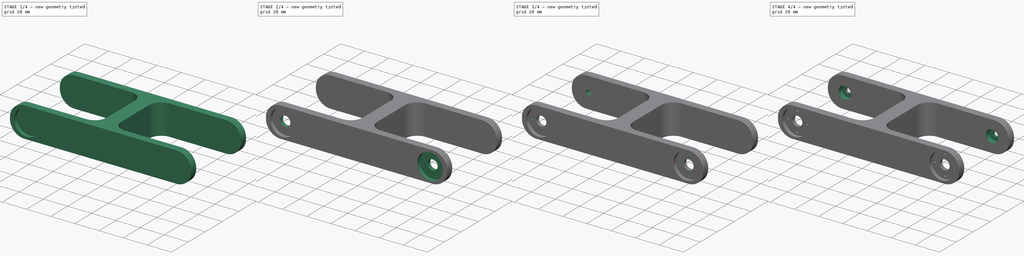
[diagram: build sequence overview — one tinted view per stage of 4, left to right]
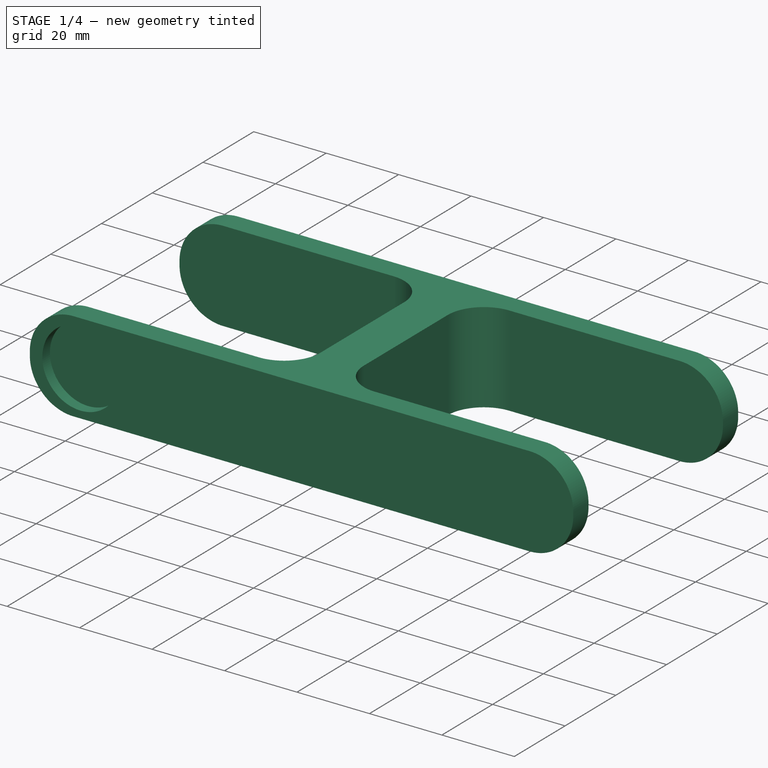
[diagram: stage 1 of 4 — iso view after this stage's code; geometry added in this stage tinted green]
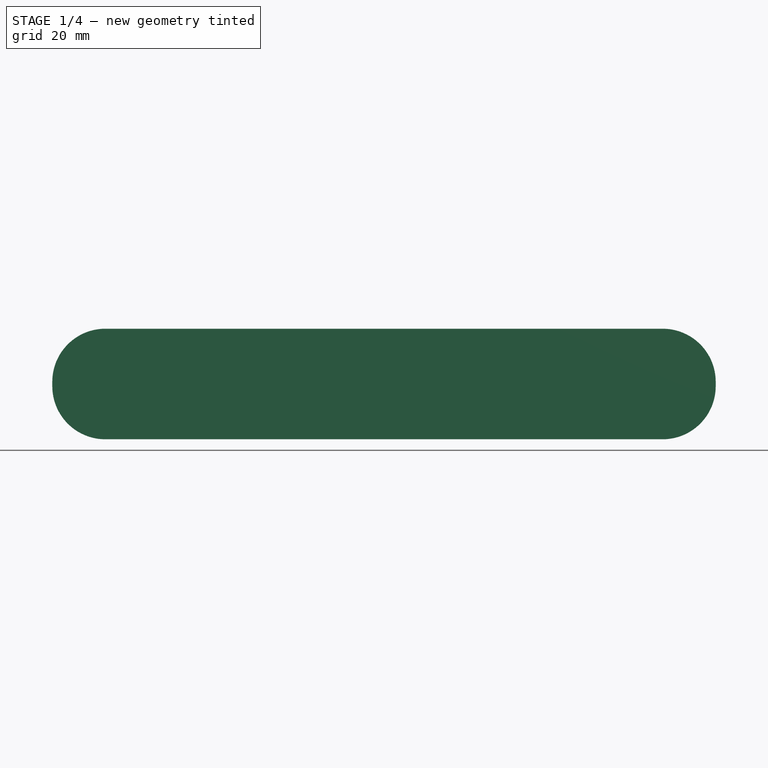
[diagram: stage 1 of 4 — front view after this stage's code; geometry added in this stage tinted green]
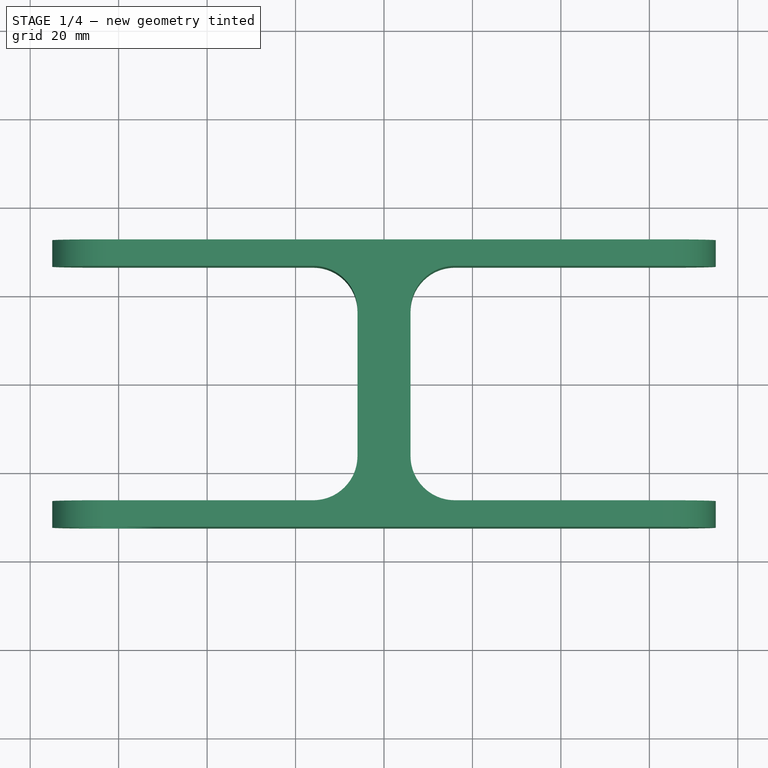
[diagram: stage 1 of 4 — top view after this stage's code; geometry added in this stage tinted green]
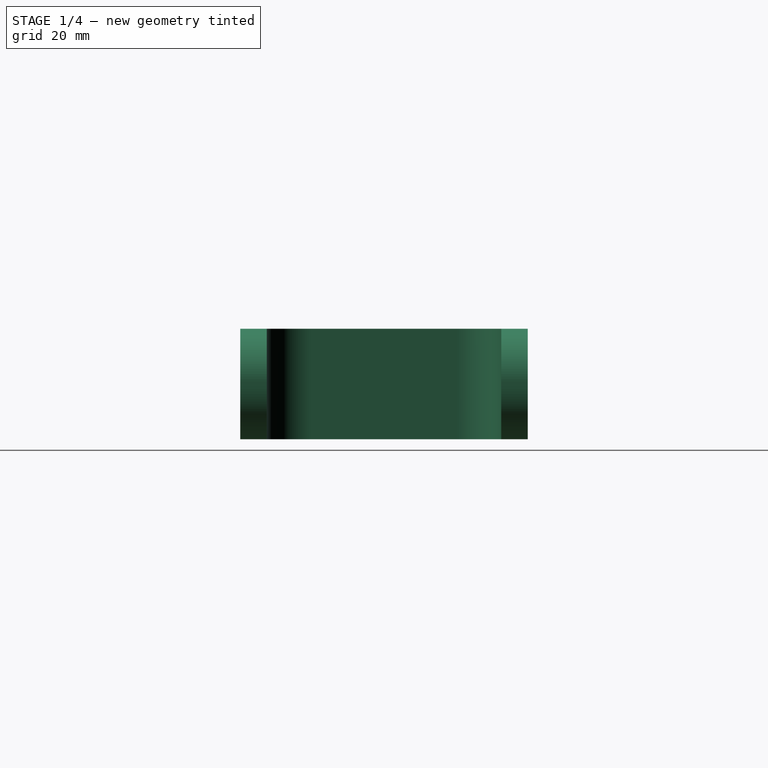
[diagram: stage 1 of 4 — right view after this stage's code; geometry added in this stage tinted green]
FCSTD DOCUMENT  (FreeCAD 0.17R13519 (Git))
Label: pieza2V6
License: CreativeCommons Attribution-ShareAlike
LicenseURL: http://creativecommons.org/licenses/by-sa/4.0/
objects: Sketcher::SketchObject×6, PartDesign::Plane×5, PartDesign::Pocket×5, PartDesign::Mirrored×5, PartDesign::Pad×1, PartDesign::Fillet×1, PartDesign::Body×1, Part::Feature×1
note: 31 computed .brp shape members not serialized (recipe doc carries the construction recipe); baked Part::Feature solids carry a one-line shape summary decoded from their .brp

FEATURE [Sketcher::SketchObject] Sketch
  MapMode = 5
  Support = -> [XY_Plane]
  sketch-geometry (18):
    g0: LineSegment StartX=-75 StartY=32.5 StartZ=0 EndX=-75 EndY=26.5 EndZ=0
    g1: LineSegment StartX=-75 StartY=26.5 StartZ=0 EndX=-16 EndY=26.5 EndZ=0
    g2: LineSegment StartX=-6 StartY=16.5 StartZ=0 EndX=-6 EndY=-16.5 EndZ=0
    g3: LineSegment StartX=-16 StartY=-26.5 StartZ=0 EndX=-75 EndY=-26.5 EndZ=0
    g4: LineSegment StartX=-75 StartY=-26.5 StartZ=0 EndX=-75 EndY=-32.5 EndZ=0
    g5: LineSegment StartX=-75 StartY=-32.5 StartZ=0 EndX=0 EndY=-32.5 EndZ=0
    g6: LineSegment StartX=0 StartY=32.5 StartZ=0 EndX=-75 EndY=32.5 EndZ=0
    g7: ArcOfCircle CenterX=-16 CenterY=16.5 CenterZ=0 NormalX=0 NormalY=0 NormalZ=1 AngleXU=0 Radius=10 StartAngle=0 EndAngle=1.5708
    g8: ArcOfCircle CenterX=-16 CenterY=-16.5 CenterZ=0 NormalX=0 NormalY=0 NormalZ=1 AngleXU=0 Radius=10 StartAngle=4.71239 EndAngle=6.28319
    g9: LineSegment StartX=75 StartY=32.5 StartZ=0 EndX=75 EndY=26.5 EndZ=0
    g10: LineSegment StartX=75 StartY=26.5 StartZ=0 EndX=16 EndY=26.5 EndZ=0
    g11: LineSegment StartX=6 StartY=16.5 StartZ=0 EndX=6 EndY=-16.5 EndZ=0
    g12: LineSegment StartX=16 StartY=-26.5 StartZ=0 EndX=75 EndY=-26.5 EndZ=0
    g13: LineSegment StartX=75 StartY=-26.5 StartZ=0 EndX=75 EndY=-32.5 EndZ=0
    g14: LineSegment StartX=75 StartY=-32.5 StartZ=0 EndX=0 EndY=-32.5 EndZ=0
    g15: LineSegment StartX=0 StartY=32.5 StartZ=0 EndX=75 EndY=32.5 EndZ=0
    g16: ArcOfCircle CenterX=16 CenterY=16.5 CenterZ=0 NormalX=0 NormalY=0 NormalZ=1 AngleXU=0 Radius=10 StartAngle=1.5708 EndAngle=3.14159
    g17: ArcOfCircle CenterX=16 CenterY=-16.5 CenterZ=0 NormalX=0 NormalY=0 NormalZ=1 AngleXU=0 Radius=10 StartAngle=3.14159 EndAngle=4.71239
  constraints (44):
    c: Vertical(g0)
    c: Coincident(g0,g1)
    c: Horizontal(g1)
    c: Vertical(g2)
    c: Horizontal(g3)
    c: Coincident(g3,g4)
    c: Vertical(g4)
    c: Coincident(g4,g5)
    c: PointOnObject(g5,g-2)
    c: Horizontal(g5)
    c: Coincident(g6,g0)
    c: Horizontal(g6)
    c: DistanceX(g6,g6) = 75
    c: Equal(g6,g5)
    c: Equal(g0,g4)
    c: DistanceY(g4,g4) = 6
    c: DistanceY(g5,g6) = 65
    c: Tangent(g1,g7) = 1.5708
    c: Tangent(g2,g7) = 1.5708
    c: Tangent(g2,g8) = 1.5708
    c: Tangent(g3,g8) = 1.5708
    c: Equal(g8,g7)
    c: Radius(g7) = 10
    c: Symmetric(g5,g6,g-1)
    c: DistanceX(g2,g5) = 6
    c: Vertical(g9)
    c: Coincident(g9,g10)
    c: Horizontal(g10)
    c: Vertical(g11)
    c: Horizontal(g12)
    c: Coincident(g12,g13)
    c: Vertical(g13)
    c: Coincident(g13,g14)
    c: Horizontal(g14)
    c: Coincident(g15,g9)
    c: Horizontal(g15)
    c: Equal(g15,g14)
    c: Equal(g9,g13)
    c: Tangent(g10,g16) = -1.5708
    c: Tangent(g11,g16) = -1.5708
    c: Tangent(g11,g17) = -1.5708
    c: Tangent(g12,g17) = -1.5708
    c: Equal(g17,g16)
    c: Radius(g16) = 10
FEATURE [PartDesign::Pad] Pad
  Length = 25
  Length2 = 100
  Profile = -> Sketch
  Type = 0
FEATURE [PartDesign::Fillet] Fillet
  Base = -> Pad [Edge7,Edge25,Edge34,Edge52,Edge51,Edge33,Edge6,Edge24]
  BaseFeature = -> Pad
  Radius = 12
FEATURE [PartDesign::Plane] DatumPlane
  MapMode = 5
  Placement = pos=(0,-32.5,0) rot=(1,0,0;1.5708rad)
  Support = -> [Fillet]
FEATURE [Sketcher::SketchObject] Sketch001
  MapMode = 5
  Placement = pos=(0,-32.5,0) rot=(1,0,0;1.5708rad)
  Support = -> [DatumPlane]
  sketch-geometry (2):
    g0: LineSegment [constr] StartX=-89.6906 StartY=12.5 StartZ=0 EndX=25.4828 EndY=12.5 EndZ=0
    g1: Circle CenterX=-61 CenterY=12.5 CenterZ=0 NormalX=0 NormalY=0 NormalZ=1 AngleXU=0 Radius=10.55
  constraints (5):
    c: Horizontal(g0)
    c: DistanceY(g-1,g0) = 12.5
    c: PointOnObject(g1,g0)
    c: Radius(g1) = 10.55
    c: DistanceX(g1,g-1) = 61
FEATURE [PartDesign::Pocket] Pocket
  BaseFeature = -> Fillet
  Length = 3
  Length2 = 100
  Profile = -> Sketch001
  Type = 0
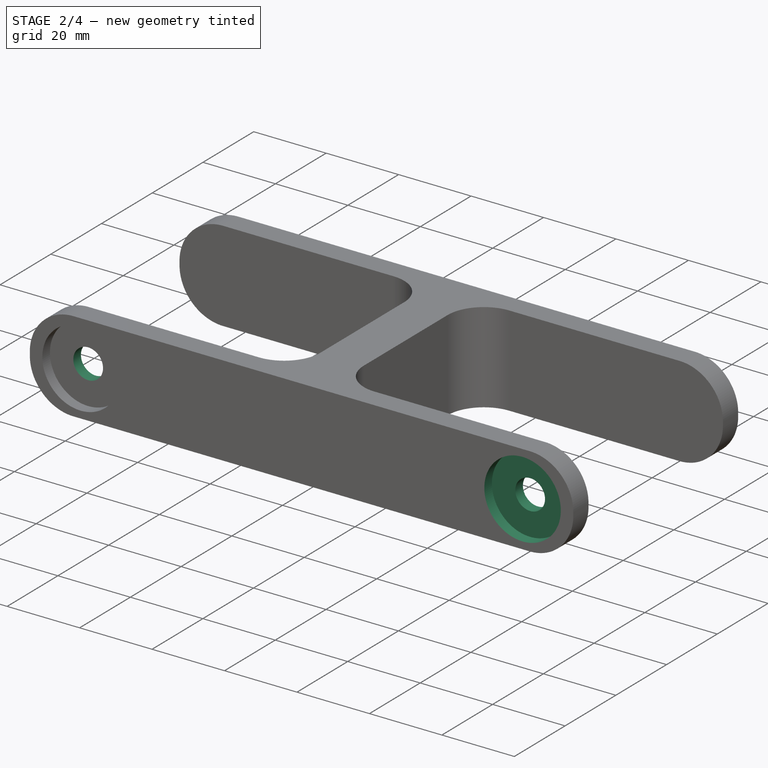
[diagram: stage 2 of 4 — iso view after this stage's code; geometry added in this stage tinted green]
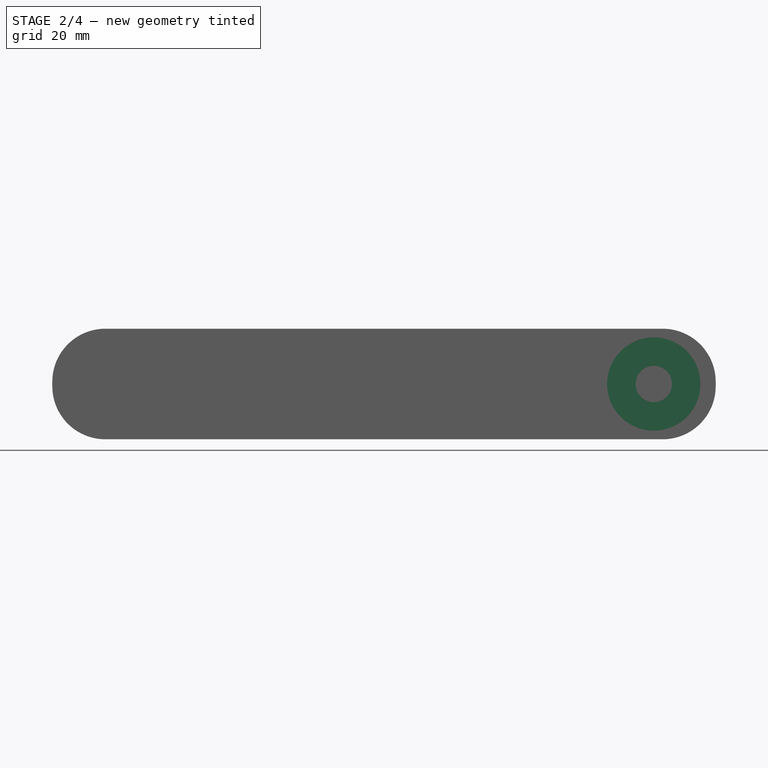
[diagram: stage 2 of 4 — front view after this stage's code; geometry added in this stage tinted green]
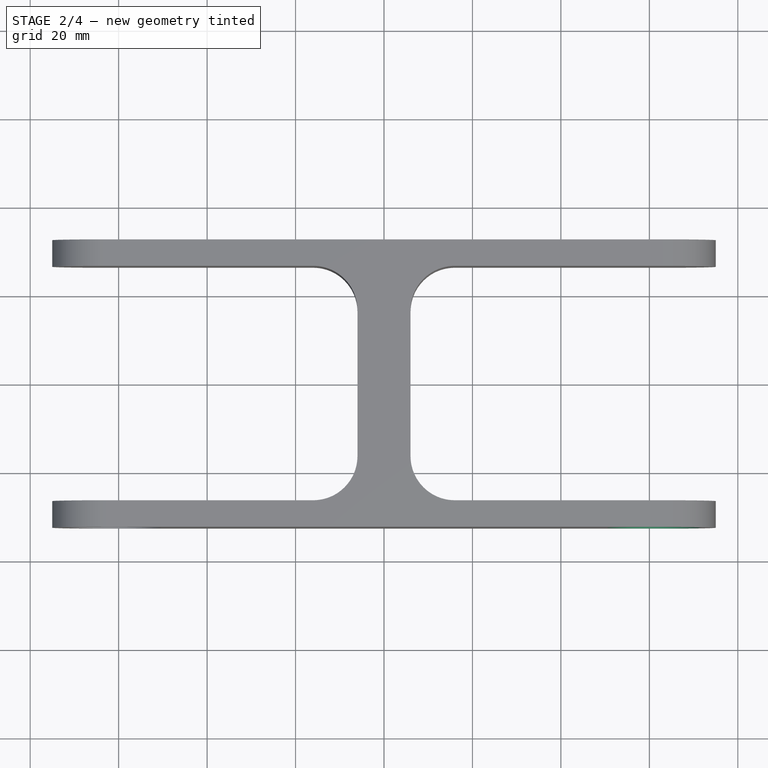
[diagram: stage 2 of 4 — top view after this stage's code; geometry added in this stage tinted green]
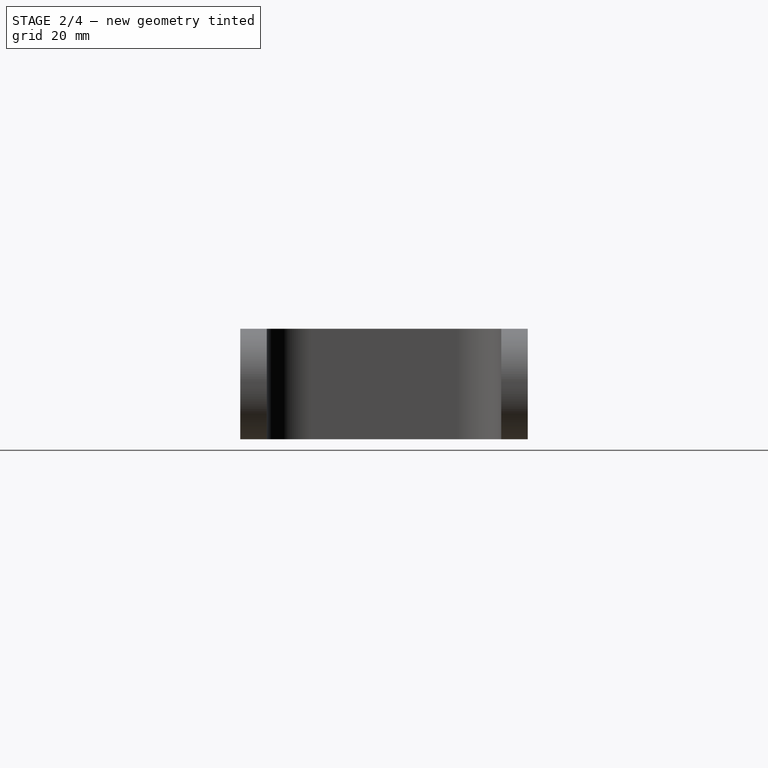
[diagram: stage 2 of 4 — right view after this stage's code; geometry added in this stage tinted green]
FEATURE [PartDesign::Mirrored] Mirrored
  BaseFeature = -> Pocket
  MirrorPlane = -> Sketch001 [V_Axis]
  Originals = -> [Pocket]
FEATURE [PartDesign::Plane] DatumPlane001
  MapMode = 5
  Placement = pos=(0,-29.5,0) rot=(1,0,0;1.5708rad)
  Support = -> [Mirrored]
FEATURE [Sketcher::SketchObject] Sketch002
  ExternalGeometry = -> [Pocket]
  MapMode = 5
  Placement = pos=(0,-29.5,0) rot=(1,0,0;1.5708rad)
  Support = -> [DatumPlane001]
  sketch-geometry (1):
    g0: Circle CenterX=-61 CenterY=12.5 CenterZ=0 NormalX=0 NormalY=0 NormalZ=1 AngleXU=0 Radius=4.1
  constraints (2):
    c: Coincident(g0,g-3)
    c: Radius(g0) = 4.1
FEATURE [PartDesign::Pocket] Pocket001
  BaseFeature = -> Mirrored
  Length = 5
  Length2 = 100
  Profile = -> Sketch002
  Type = 0
FEATURE [PartDesign::Mirrored] Mirrored001
  BaseFeature = -> Pocket001
  MirrorPlane = -> Sketch002 [V_Axis]
  Originals = -> [Pocket001]
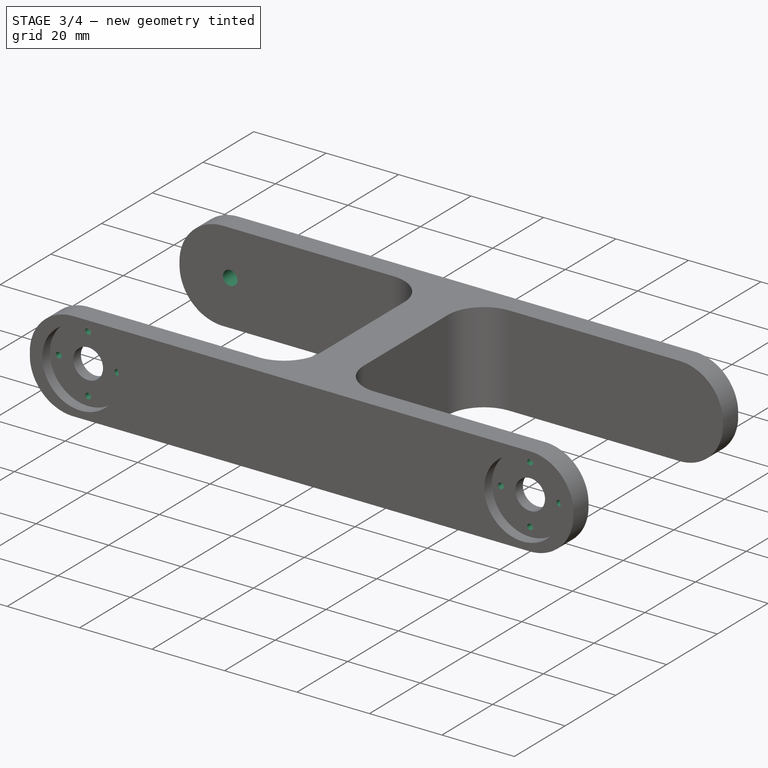
[diagram: stage 3 of 4 — iso view after this stage's code; geometry added in this stage tinted green]
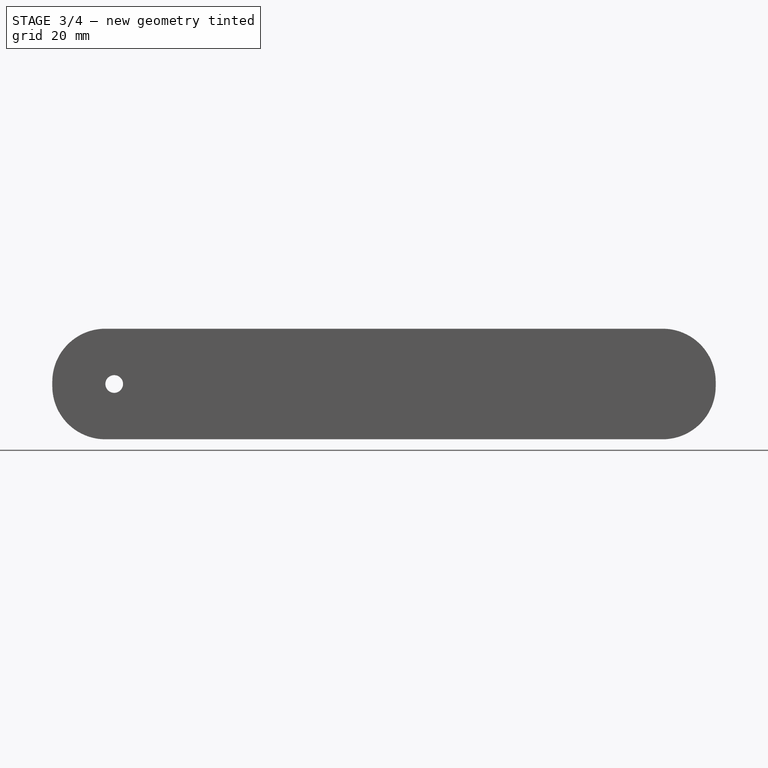
[diagram: stage 3 of 4 — front view after this stage's code; geometry added in this stage tinted green]
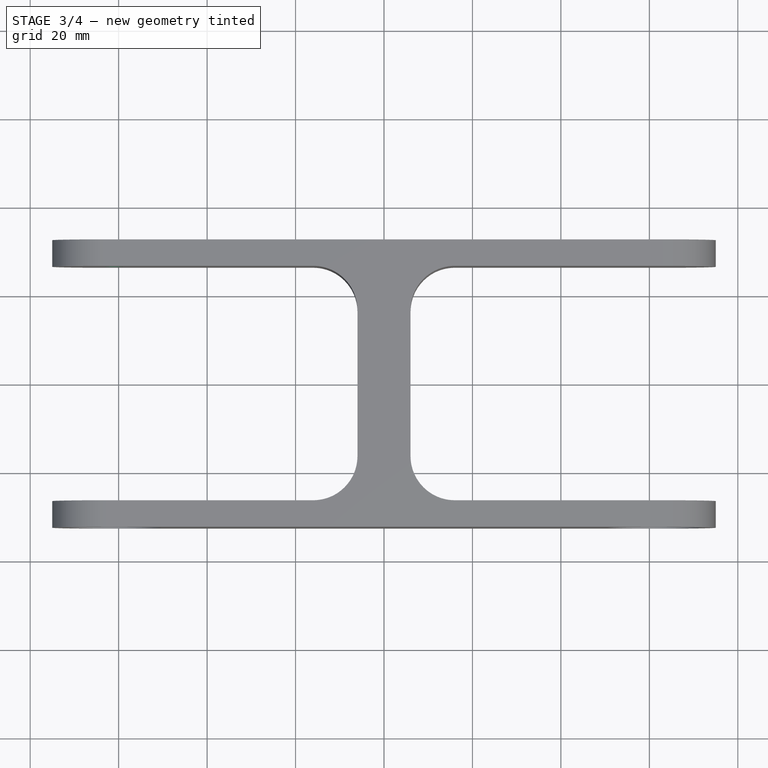
[diagram: stage 3 of 4 — top view after this stage's code; geometry added in this stage tinted green]
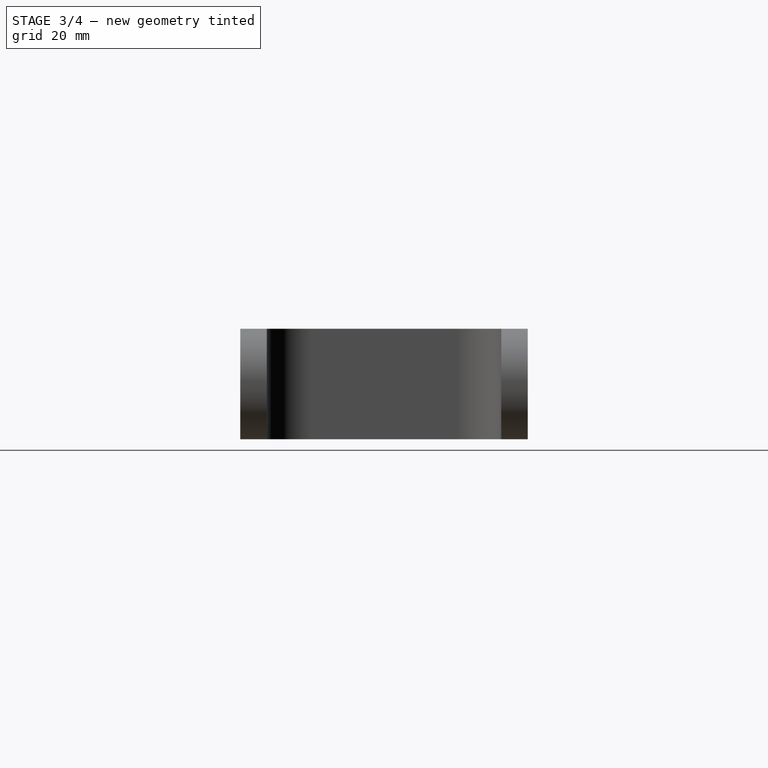
[diagram: stage 3 of 4 — right view after this stage's code; geometry added in this stage tinted green]
FEATURE [PartDesign::Plane] DatumPlane002
  MapMode = 5
  Placement = pos=(0,-29.5,0) rot=(1,0,0;1.5708rad)
  Support = -> [Mirrored001]
FEATURE [Sketcher::SketchObject] Sketch003
  ExternalGeometry = -> [Pocket001]
  MapMode = 5
  Placement = pos=(0,-29.5,0) rot=(1,0,0;1.5708rad)
  Support = -> [DatumPlane002]
  sketch-geometry (6):
    g0: LineSegment [constr] StartX=-61 StartY=23.8845 StartZ=0 EndX=-61 EndY=-3.54192 EndZ=0
    g1: LineSegment [constr] StartX=-76.3948 StartY=12.5 StartZ=0 EndX=-47.5921 EndY=12.5 EndZ=0
    g2: Circle CenterX=-61 CenterY=20.57 CenterZ=0 NormalX=0 NormalY=0 NormalZ=1 AngleXU=0 Radius=0.8
    g3: Circle CenterX=-52.93 CenterY=12.5 CenterZ=0 NormalX=0 NormalY=0 NormalZ=1 AngleXU=0 Radius=0.8
    g4: Circle CenterX=-61 CenterY=4.43 CenterZ=0 NormalX=0 NormalY=0 NormalZ=1 AngleXU=0 Radius=0.8
    g5: Circle CenterX=-69.07 CenterY=12.5 CenterZ=0 NormalX=0 NormalY=0 NormalZ=1 AngleXU=0 Radius=0.8
  constraints (13):
    c: Vertical(g0)
    c: Horizontal(g1)
    c: PointOnObject(g4,g0)
    c: Equal(g2,g3)
    c: Equal(g3,g4)
    c: Equal(g4,g5)
    c: PointOnObject(g3,g1)
    c: PointOnObject(g5,g1)
    c: DistanceY(g4,g2) = 16.14
    c: Symmetric(g2,g4,g1)
    c: Symmetric(g5,g3,g0)
    c: Radius(g2) = 0.8
    c: DistanceX(g5,g3) = 16.14
FEATURE [PartDesign::Pocket] Pocket002
  BaseFeature = -> Mirrored001
  Length = 5
  Length2 = 100
  Profile = -> Sketch003
  Type = 0
FEATURE [PartDesign::Mirrored] Mirrored002
  BaseFeature = -> Pocket002
  MirrorPlane = -> Sketch003 [V_Axis]
  Originals = -> [Pocket002]
FEATURE [PartDesign::Plane] DatumPlane003
  MapMode = 5
  Placement = pos=(0,-29.5,0) rot=(1,0,0;1.5708rad)
  Support = -> [Mirrored002]
FEATURE [Sketcher::SketchObject] Sketch004
  ExternalGeometry = -> [Pocket002]
  MapMode = 5
  Placement = pos=(0,-29.5,0) rot=(1,0,0;1.5708rad)
  Support = -> [DatumPlane003]
  sketch-geometry (1):
    g0: Circle CenterX=-61 CenterY=12.5 CenterZ=0 NormalX=0 NormalY=0 NormalZ=1 AngleXU=0 Radius=2
  constraints (2):
    c: Coincident(g0,g-3)
    c: Radius(g0) = 2
FEATURE [PartDesign::Pocket] Pocket003
  BaseFeature = -> Mirrored002
  Length = 5
  Length2 = 100
  Profile = -> Sketch004
  Type = 1
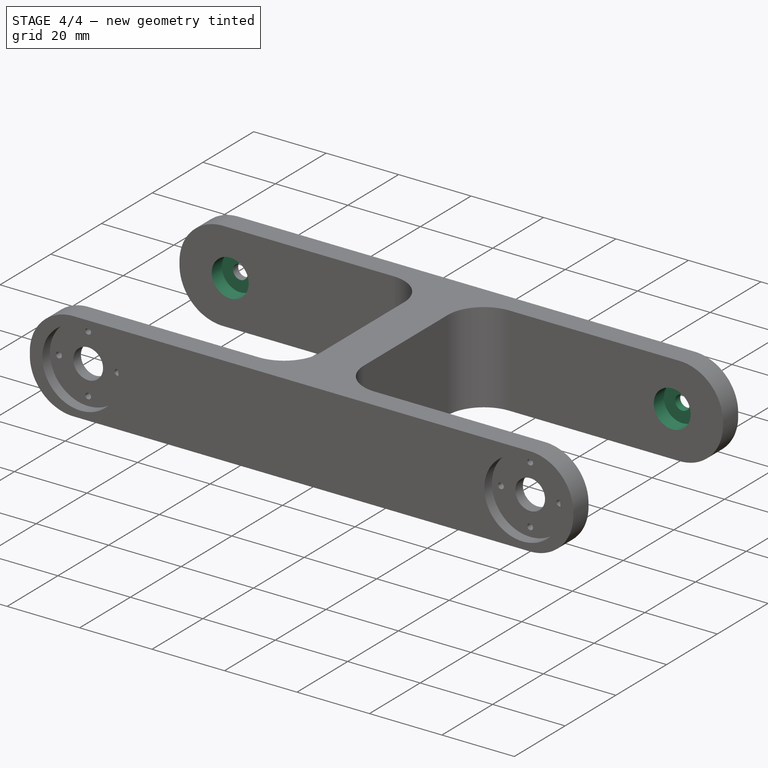
[diagram: stage 4 of 4 — iso view after this stage's code; geometry added in this stage tinted green]
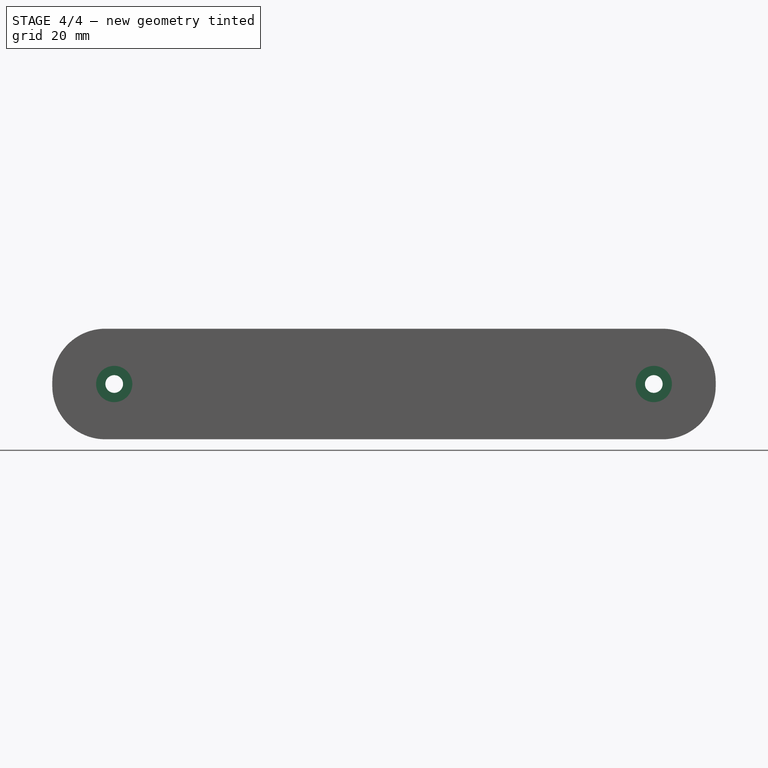
[diagram: stage 4 of 4 — front view after this stage's code; geometry added in this stage tinted green]
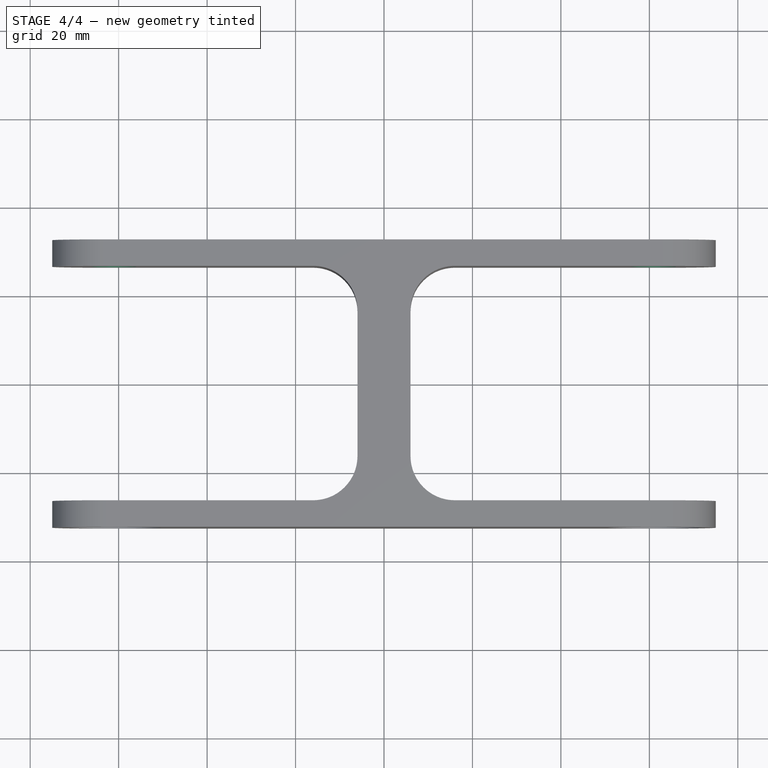
[diagram: stage 4 of 4 — top view after this stage's code; geometry added in this stage tinted green]
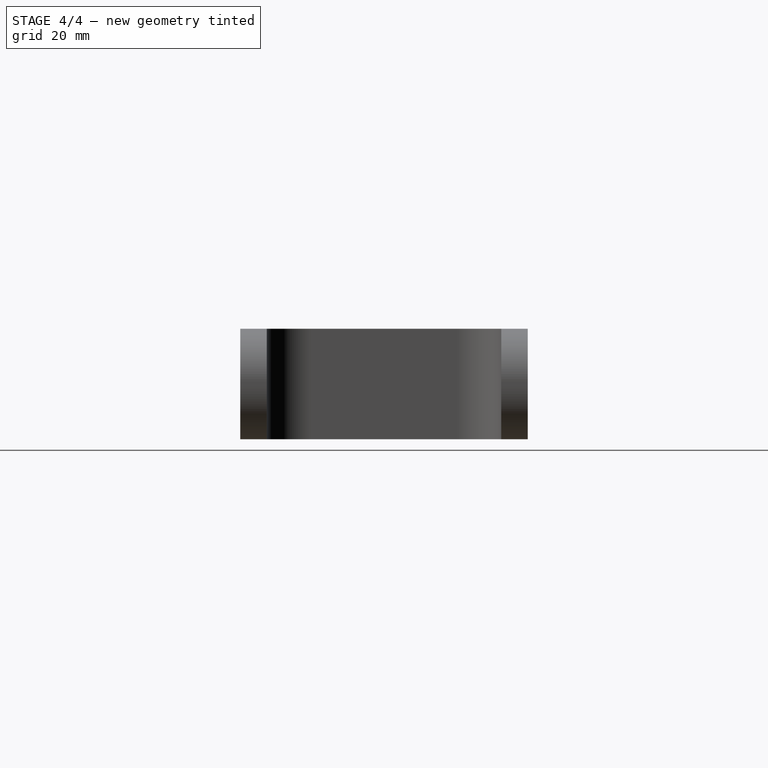
[diagram: stage 4 of 4 — right view after this stage's code; geometry added in this stage tinted green]
FEATURE [PartDesign::Mirrored] Mirrored003
  BaseFeature = -> Pocket003
  MirrorPlane = -> Sketch004 [V_Axis]
  Originals = -> [Pocket003]
FEATURE [PartDesign::Plane] DatumPlane004
  MapMode = 5
  Placement = pos=(0,26.5,0) rot=(1,0,0;1.5708rad)
  Support = -> [Mirrored003]
FEATURE [Sketcher::SketchObject] Sketch005
  ExternalGeometry = -> [Pocket003]
  MapMode = 5
  Placement = pos=(0,26.5,0) rot=(1,0,0;1.5708rad)
  Support = -> [DatumPlane004]
  sketch-geometry (1):
    g0: Circle CenterX=-61 CenterY=12.5 CenterZ=0 NormalX=0 NormalY=0 NormalZ=1 AngleXU=0 Radius=5.1
  constraints (2):
    c: Coincident(g0,g-3)
    c: Radius(g0) = 5.1
FEATURE [PartDesign::Pocket] Pocket004
  BaseFeature = -> Mirrored003
  Length = 4
  Length2 = 100
  Profile = -> Sketch005
  Type = 0
FEATURE [PartDesign::Mirrored] Mirrored004
  BaseFeature = -> Pocket004
  MirrorPlane = -> Sketch005 [V_Axis]
  Originals = -> [Pocket004]
FEATURE [PartDesign::Body] Body
  Group = -> [Sketch,Pad,Fillet,DatumPlane,Sketch001,Pocket,Mirrored,DatumPlane001,Sketch002,Pocket001,Mirrored001,DatumPlane002,Sketch003,Pocket002,Mirrored002,DatumPlane003,Sketch004,Pocket003,Mirrored003,DatumPlane004,Sketch005,Pocket004,Mirrored004]
  Origin = -> Origin
  Tip = -> Mirrored004
FEATURE [Part::Feature] Mirrored004001  label="Mirrored005"
  shape: bbox 150 x 65 x 25 mm, 48 faces (baked)
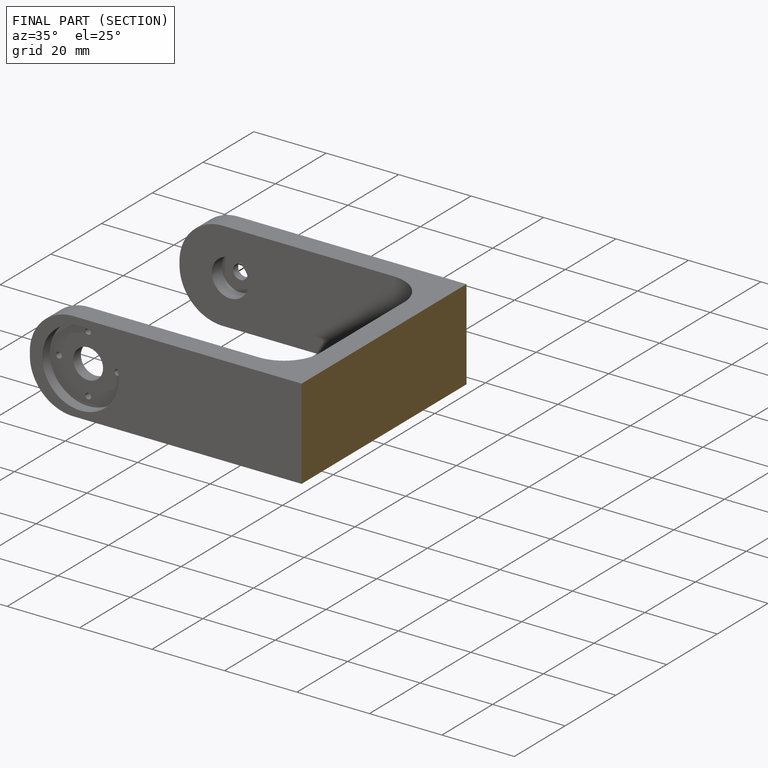
[diagram: finished part — half-section view (interior)]
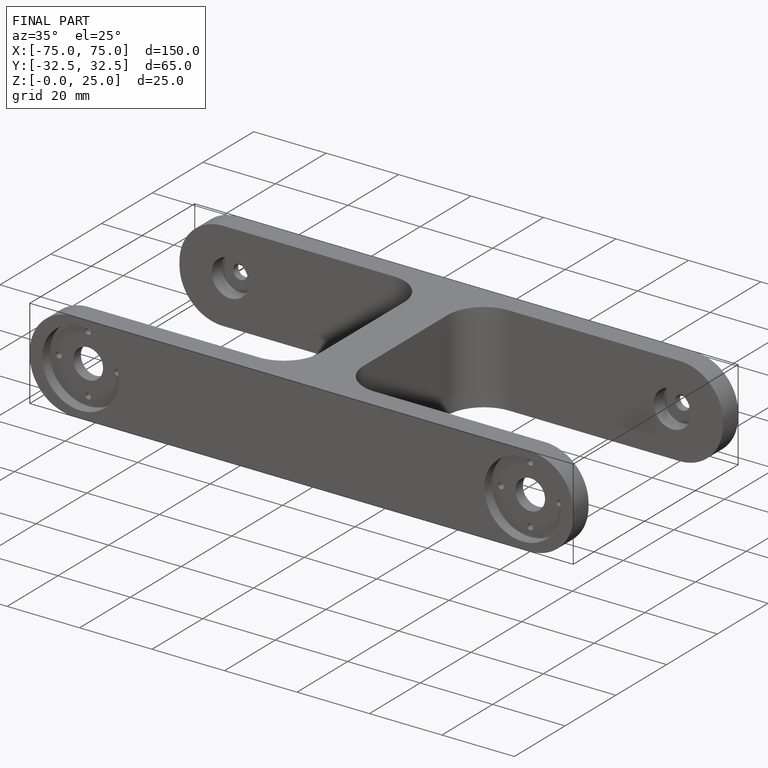
[diagram: finished part — iso view with bounding-box wireframe]
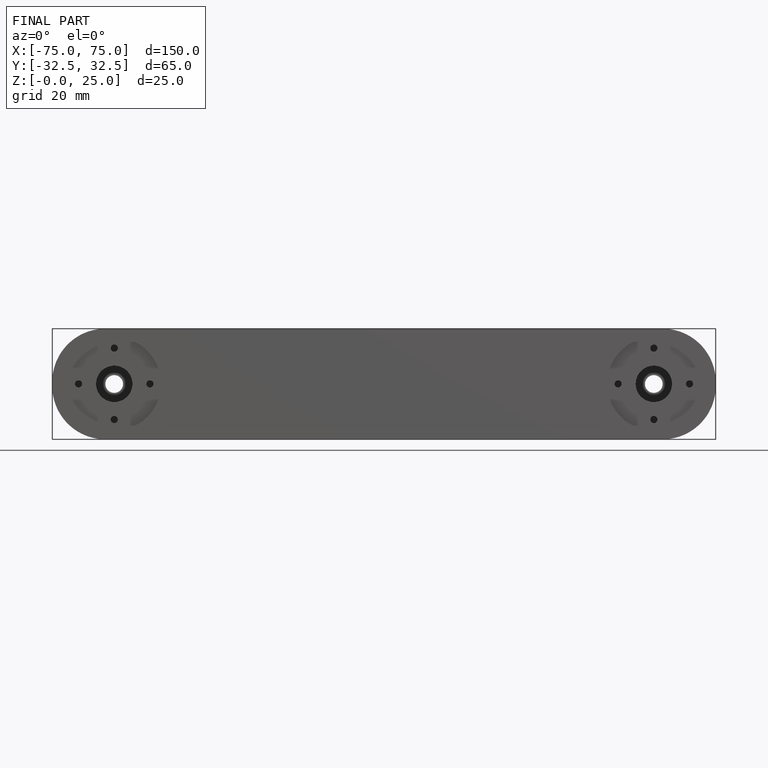
[diagram: finished part — front view with bounding-box wireframe]
